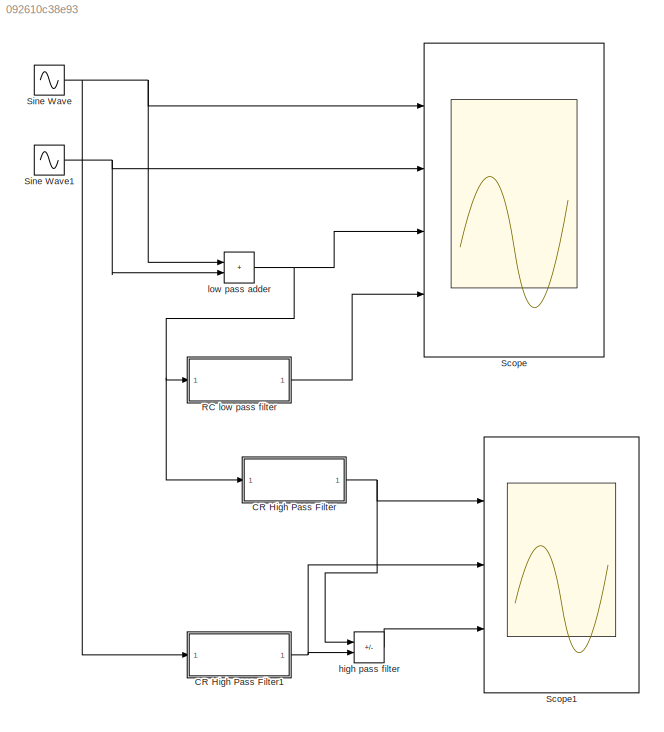
MODEL slx_092610c38e93
KIND model
CONFIG AbsTol = auto
CONFIG EnableMultiTasking = off
CONFIG FixedStep = 0.001
CONFIG MaxStep = auto
CONFIG MinStep = auto
CONFIG RelTol = 1e-3
CONFIG SampleTimeConstraint = Unconstrained
CONFIG SolverName = FixedStepAuto
CONFIG StartTime = 0.0
CONFIG StopTime = 10.0
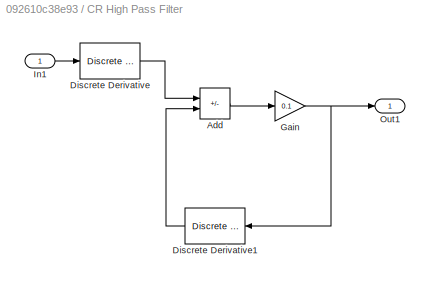
BLOCK [SubSystem] CR High Pass Filter
  Ports = [1, 1]
  RequestExecContextInheritance = off
BLOCK [Sum] CR High Pass Filter/Add
  IconShape = rectangular
  Inputs = +-
  Ports = [2, 1]
BLOCK [Reference] CR High Pass Filter/Discrete Derivative  REF=simulink/Discrete/Discrete Derivative
  Ports = [1, 1]
  SourceBlock = simulink/Discrete/Discrete Derivative
  SourceProductBaseCode = SL
  SourceType = Discrete Derivative
BLOCK [Reference] CR High Pass Filter/Discrete Derivative1  REF=simulink/Discrete/Discrete Derivative
  Ports = [1, 1]
  SourceBlock = simulink/Discrete/Discrete Derivative
  SourceProductBaseCode = SL
  SourceType = Discrete Derivative
BLOCK [Gain] CR High Pass Filter/Gain
  Gain = 0.1
BLOCK [Inport] CR High Pass Filter/In1
BLOCK [Outport] CR High Pass Filter/Out1
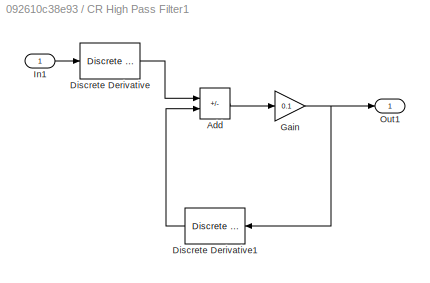
BLOCK [SubSystem] CR High Pass Filter1
  Ports = [1, 1]
  RequestExecContextInheritance = off
BLOCK [Sum] CR High Pass Filter1/Add
  IconShape = rectangular
  Inputs = +-
  Ports = [2, 1]
BLOCK [Reference] CR High Pass Filter1/Discrete Derivative  REF=simulink/Discrete/Discrete Derivative
  Ports = [1, 1]
  SourceBlock = simulink/Discrete/Discrete Derivative
  SourceProductBaseCode = SL
  SourceType = Discrete Derivative
BLOCK [Reference] CR High Pass Filter1/Discrete Derivative1  REF=simulink/Discrete/Discrete Derivative
  Ports = [1, 1]
  SourceBlock = simulink/Discrete/Discrete Derivative
  SourceProductBaseCode = SL
  SourceType = Discrete Derivative
BLOCK [Gain] CR High Pass Filter1/Gain
  Gain = 0.1
BLOCK [Inport] CR High Pass Filter1/In1
BLOCK [Outport] CR High Pass Filter1/Out1
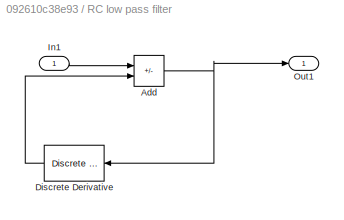
BLOCK [SubSystem] RC low pass filter
  Ports = [1, 1]
  RequestExecContextInheritance = off
BLOCK [Sum] RC low pass filter/Add
  IconShape = rectangular
  Inputs = +-
  Ports = [2, 1]
BLOCK [Reference] RC low pass filter/Discrete Derivative  REF=simulink/Discrete/Discrete Derivative
  Ports = [1, 1]
  SourceBlock = simulink/Discrete/Discrete Derivative
  SourceProductBaseCode = SL
  SourceType = Discrete Derivative
BLOCK [Inport] RC low pass filter/In1
BLOCK [Outport] RC low pass filter/Out1
BLOCK [Scope] Scope
  Floating = off
  NumInputPorts = 4
  Ports = [4]
  ScopeSpecificationString = Simulink.scopes.TimeScopeBlockCfg('CurrentConfiguration', extmgr.ConfigurationSet(extmgr.Configuration('Core','General UI',true),extmgr.Configuration('Core','Source UI',true),extmgr.Configuration('Sources','WiredSimulink',true),extmgr.Configuration('Visuals','Time Domain',true,'SerializedDisplays',{struct('MinYLimReal','-62.5','MaxYLimReal','62.5','YLabelReal','','MinYLimMag','0.00000','MaxYLimMag...<+3425ch>
BLOCK [Scope] Scope1
  Floating = off
  NumInputPorts = 3
  Ports = [3]
  ScopeSpecificationString = Simulink.scopes.TimeScopeBlockCfg('CurrentConfiguration', extmgr.ConfigurationSet(extmgr.Configuration('Core','General UI',true),extmgr.Configuration('Core','Source UI',true),extmgr.Configuration('Sources','WiredSimulink',true,'DataLoggingVariableName','ScopeData1'),extmgr.Configuration('Visuals','Time Domain',true,'SerializedDisplays',{struct('MinYLimReal','-10.39198','MaxYLimReal','10.59969','YL...<+2784ch>
BLOCK [Sin] Sine Wave
  Amplitude = 50
  Ports = [0, 1]
  SampleTime = 0
BLOCK [Sin] Sine Wave1
  Amplitude = 5
  Frequency = 10
  Ports = [0, 1]
  SampleTime = 0
BLOCK [Sum] high pass filter
  IconShape = rectangular
  Inputs = +-
  Ports = [2, 1]
BLOCK [Sum] low pass adder
  IconShape = rectangular
  Ports = [2, 1]
LINE CR High Pass Filter/Add:1 -> CR High Pass Filter/Gain:1
LINE CR High Pass Filter/Discrete Derivative1:1 -> CR High Pass Filter/Add:2
LINE CR High Pass Filter/Discrete Derivative:1 -> CR High Pass Filter/Add:1
NET CR High Pass Filter/Gain:1 -> CR High Pass Filter/Discrete Derivative1:1, CR High Pass Filter/Out1:1
LINE CR High Pass Filter/In1:1 -> CR High Pass Filter/Discrete Derivative:1
LINE CR High Pass Filter1/Add:1 -> CR High Pass Filter1/Gain:1
LINE CR High Pass Filter1/Discrete Derivative1:1 -> CR High Pass Filter1/Add:2
LINE CR High Pass Filter1/Discrete Derivative:1 -> CR High Pass Filter1/Add:1
NET CR High Pass Filter1/Gain:1 -> CR High Pass Filter1/Discrete Derivative1:1, CR High Pass Filter1/Out1:1
LINE CR High Pass Filter1/In1:1 -> CR High Pass Filter1/Discrete Derivative:1
NET CR High Pass Filter1:1 -> Scope1:2, high pass filter:2
NET CR High Pass Filter:1 -> Scope1:1, high pass filter:1
NET RC low pass filter/Add:1 -> RC low pass filter/Discrete Derivative:1, RC low pass filter/Out1:1
LINE RC low pass filter/Discrete Derivative:1 -> RC low pass filter/Add:2
LINE RC low pass filter/In1:1 -> RC low pass filter/Add:1
LINE RC low pass filter:1 -> Scope:4
NET Sine Wave1:1 -> Scope:2, low pass adder:2
NET Sine Wave:1 -> CR High Pass Filter1:1, Scope:1, low pass adder:1
LINE high pass filter:1 -> Scope1:3
NET low pass adder:1 -> CR High Pass Filter:1, RC low pass filter:1, Scope:3
note: NET lines group one-source signal fan-out (src -> all destinations, sorted); 1:1 wires keep LINE
